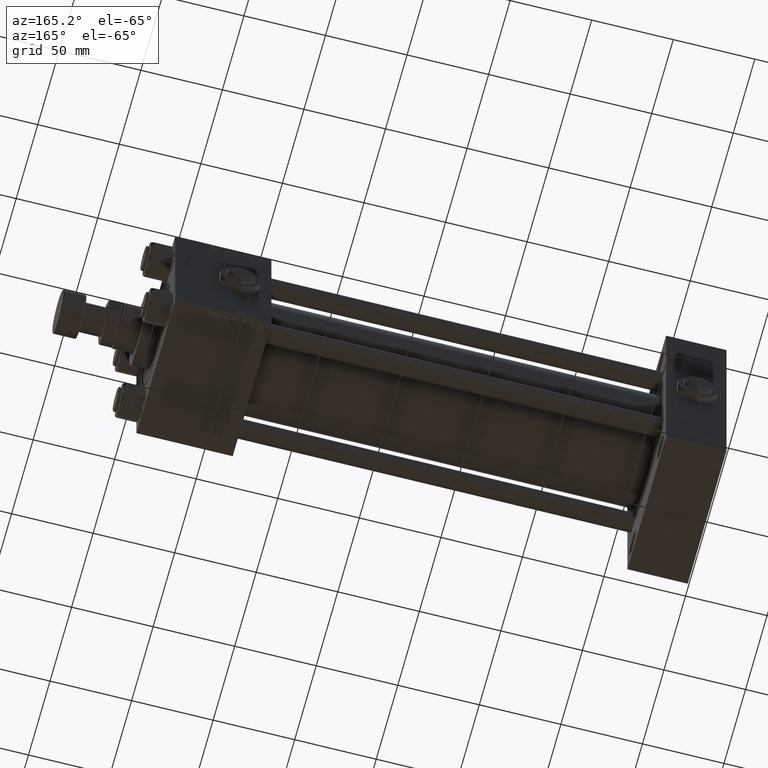
[diagram: clean part render]
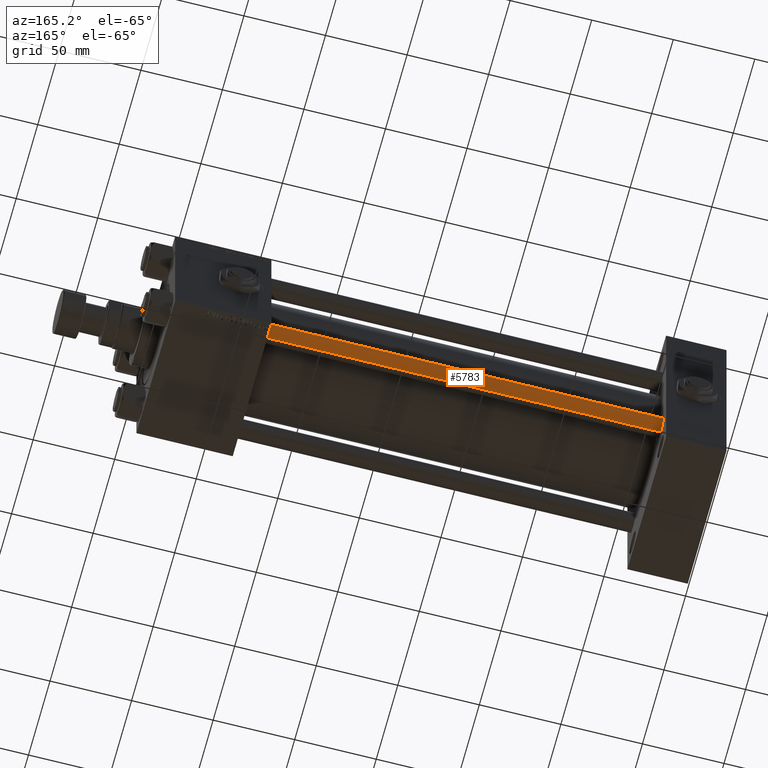
[diagram: same view with one face highlighted and labeled with its STEP entity id]
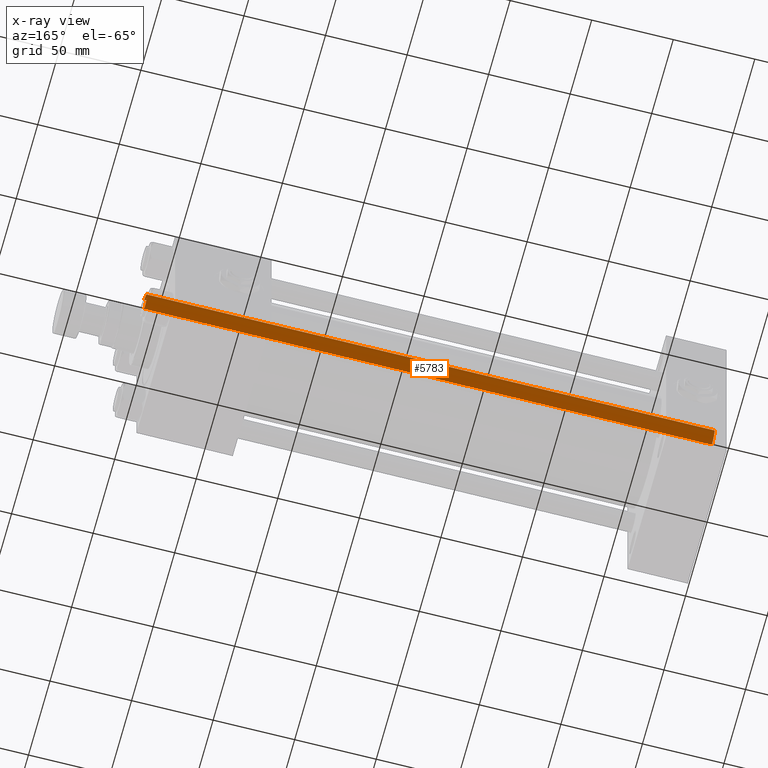
[diagram: x-ray of the same camera — body ghosted, the highlighted face saturated]
A machine part, auxiliary view. The second image highlights one B-rep face of the part: STEP entity #5783.
The next image is the same camera in x-ray: the body ghosted, the highlighted face saturated — about 0% of this face is hidden behind the body in this view.
In plain terms, the highlighted cylindrical surface (edge-blend (fillet) strip) has radius 6 mm, axis along (-1, 0, 0).
Its self-contained STEP definition (entity closure, byte-faithful):
#889 = CARTESIAN_POINT ( 'NONE',  ( -6.000000000000000888, 0.000000000000000000, 348.5000000000000568 ) ) ;
#1449 = LINE ( 'NONE', #45824, #22882 ) ;
#2201 = FACE_OUTER_BOUND ( 'NONE', #41835, .T. ) ;
#2308 = AXIS2_PLACEMENT_3D ( 'NONE', #7501, #4030, #23748 ) ;
#3112 = AXIS2_PLACEMENT_3D ( 'NONE', #11111, #47509, #27075 ) ;
#4030 = DIRECTION ( 'NONE',  ( -0.000000000000000000, -0.000000000000000000, -1.000000000000000000 ) ) ;
#4820 = VERTEX_POINT ( 'NONE', #31105 ) ;
#5140 = EDGE_CURVE ( 'NONE', #4820, #13609, #15042, .T. ) ;
#5783 = ADVANCED_FACE ( 'NONE', ( #2201 ), #50850, .T. ) ;
#5962 = DIRECTION ( 'NONE',  ( -0.000000000000000000, -0.000000000000000000, -1.000000000000000000 ) ) ;
#7501 = CARTESIAN_POINT ( 'NONE',  ( 0.000000000000000000, 0.000000000000000000, 349.0000000000000000 ) ) ;
#9213 = CARTESIAN_POINT ( 'NONE',  ( 6.000000000000000888, 7.347880794884120722E-16, 0.5000000000000559552 ) ) ;
#11111 = CARTESIAN_POINT ( 'NONE',  ( 0.000000000000000000, 0.000000000000000000, 0.5000000000000559552 ) ) ;
#11751 = EDGE_CURVE ( 'NONE', #18722, #39680, #44831, .T. ) ;
#13095 = VECTOR ( 'NONE', #14952, 1000.000000000000000 ) ;
#13609 = VERTEX_POINT ( 'NONE', #9213 ) ;
#14952 = DIRECTION ( 'NONE',  ( -0.000000000000000000, -0.000000000000000000, -1.000000000000000000 ) ) ;
#15042 = CIRCLE ( 'NONE', #3112, 6.000000000000000888 ) ;
#15815 = EDGE_CURVE ( 'NONE', #18722, #13609, #18955, .T. ) ;
#17935 = ORIENTED_EDGE ( 'NONE', *, *, #15815, .F. ) ;
#18722 = VERTEX_POINT ( 'NONE', #20856 ) ;
#18955 = LINE ( 'NONE', #51350, #13095 ) ;
#20856 = CARTESIAN_POINT ( 'NONE',  ( 6.000000000000000888, 7.347880794884120722E-16, 348.5000000000000568 ) ) ;
#22882 = VECTOR ( 'NONE', #5962, 1000.000000000000000 ) ;
#23748 = DIRECTION ( 'NONE',  ( -1.000000000000000000, 0.000000000000000000, 0.000000000000000000 ) ) ;
#27075 = DIRECTION ( 'NONE',  ( 1.000000000000000000, 0.000000000000000000, 0.000000000000000000 ) ) ;
#30151 = EDGE_CURVE ( 'NONE', #39680, #4820, #1449, .T. ) ;
#31105 = CARTESIAN_POINT ( 'NONE',  ( -6.000000000000000888, 0.000000000000000000, 0.5000000000000559552 ) ) ;
#32346 = ORIENTED_EDGE ( 'NONE', *, *, #11751, .T. ) ;
#32517 = ORIENTED_EDGE ( 'NONE', *, *, #5140, .T. ) ;
#35394 = DIRECTION ( 'NONE',  ( 1.000000000000000000, 0.000000000000000000, 0.000000000000000000 ) ) ;
#36166 = DIRECTION ( 'NONE',  ( 0.000000000000000000, 0.000000000000000000, -1.000000000000000000 ) ) ;
#39680 = VERTEX_POINT ( 'NONE', #889 ) ;
#40152 = ORIENTED_EDGE ( 'NONE', *, *, #30151, .T. ) ;
#41835 = EDGE_LOOP ( 'NONE', ( #17935, #32346, #40152, #32517 ) ) ;
#44149 = CARTESIAN_POINT ( 'NONE',  ( 0.000000000000000000, 0.000000000000000000, 348.5000000000000568 ) ) ;
#44831 = CIRCLE ( 'NONE', #49959, 6.000000000000000888 ) ;
#45824 = CARTESIAN_POINT ( 'NONE',  ( -6.000000000000000888, 0.000000000000000000, 349.0000000000000000 ) ) ;
#47509 = DIRECTION ( 'NONE',  ( -0.000000000000000000, -0.000000000000000000, 1.000000000000000000 ) ) ;
#49959 = AXIS2_PLACEMENT_3D ( 'NONE', #44149, #36166, #35394 ) ;
#50850 = CYLINDRICAL_SURFACE ( 'NONE', #2308, 6.000000000000000888 ) ;
#51350 = CARTESIAN_POINT ( 'NONE',  ( 6.000000000000000888, 7.347880794884120722E-16, 349.0000000000000000 ) ) ;